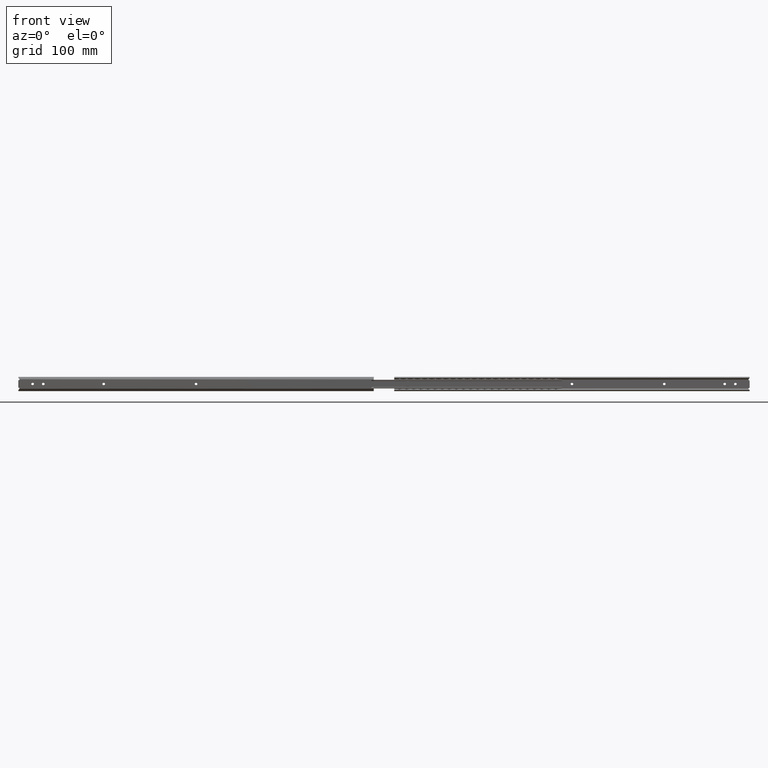
[diagram: clean part render]
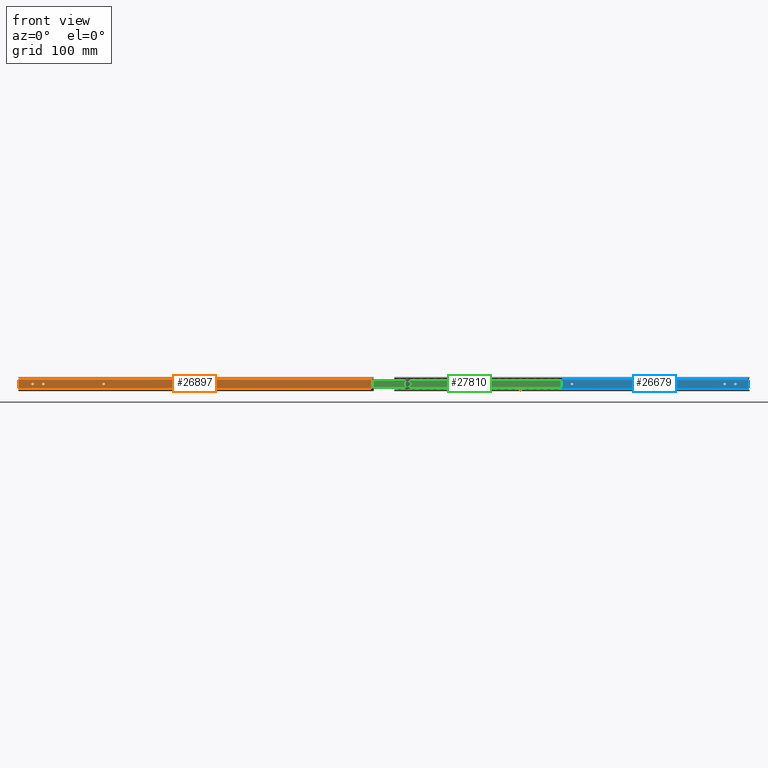
[diagram: same view with three faces highlighted in distinct colors, each labeled with its STEP entity id]
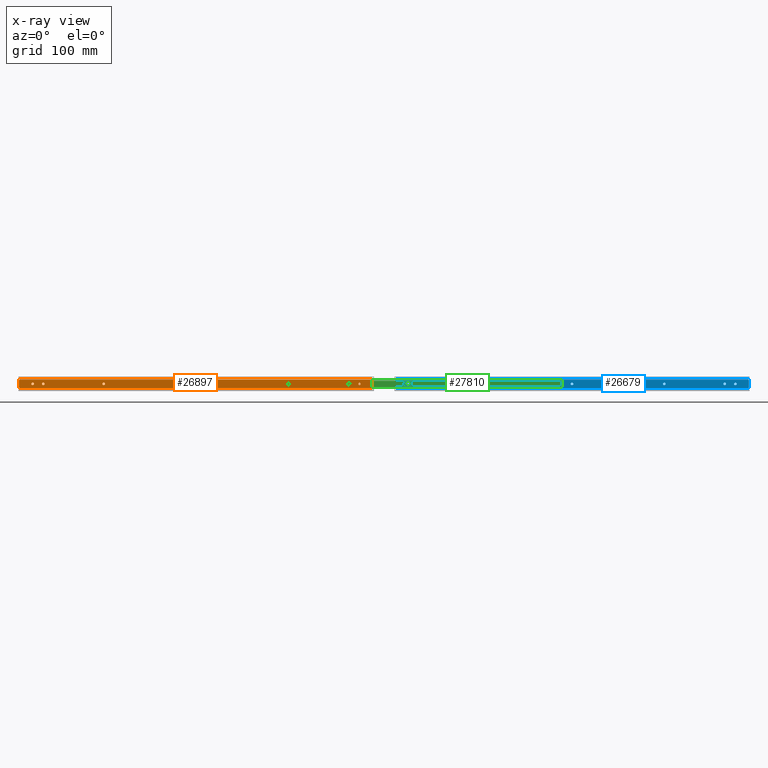
[diagram: x-ray of the same camera — body ghosted, the three highlighted faces saturated]
A machine part, front view with three faces highlighted in distinct colors.
The next image is the same camera in x-ray (body ghosted, the three faces saturated) — at least one of them is partly hidden behind the body in this view.
Their STEP definitions:

[orange] entity #26897 — the highlighted face is a freeform B-spline surface patch.
#23578=CARTESIAN_POINT('',(21.597015676147201,5.204170E-017,-0.097677684964874));
#23579=VERTEX_POINT('',#23578);
#23585=CARTESIAN_POINT('',(20.0,0.0,-1.600000000000000));
#23586=VERTEX_POINT('',#23585);
#23587=CARTESIAN_POINT('',(20.0,0.0,-1.600000000000000));
#23588=CARTESIAN_POINT('',(21.505129666052557,0.0,-1.600000000000001));
#23589=CARTESIAN_POINT('',(21.597015676147201,5.204170E-017,-0.097677684964874));
#23597=(BOUNDED_CURVE()B_SPLINE_CURVE(2,(#23587,#23588,#23589),.UNSPECIFIED.,.F.,.U.)B_SPLINE_CURVE_WITH_KNOTS((3,3),(0.500000000000000,0.739332957550924),.UNSPECIFIED.)CURVE()GEOMETRIC_REPRESENTATION_ITEM()RATIONAL_B_SPLINE_CURVE((1.0,0.719603998779066,0.976072031619401))REPRESENTATION_ITEM(''));
#23598=EDGE_CURVE('',#23586,#23579,#23597,.T.);
#23600=CARTESIAN_POINT('',(18.411184761992889,4.968999E-017,0.188854810572561));
#23601=VERTEX_POINT('',#23600);
#23602=CARTESIAN_POINT('',(18.411184761992882,4.968999E-017,0.188854810572561));
#23603=CARTESIAN_POINT('',(18.399999999999999,0.0,0.094758626936107));
#23604=CARTESIAN_POINT('',(18.399999999999999,0.0,0.0));
#23605=CARTESIAN_POINT('',(18.399999999999991,0.0,-1.600000000000000));
#23606=CARTESIAN_POINT('',(20.0,0.0,-1.600000000000000));
#23614=(BOUNDED_CURVE()B_SPLINE_CURVE(2,(#23602,#23603,#23604,#23605,#23606),.UNSPECIFIED.,.F.,.U.)B_SPLINE_CURVE_WITH_KNOTS((3,2,3),(0.229562466043801,0.250000000000000,0.500000000000000),.UNSPECIFIED.)CURVE()GEOMETRIC_REPRESENTATION_ITEM()RATIONAL_B_SPLINE_CURVE((0.956026739542767,0.976055939579838,1.0,0.707106781186548,1.0))REPRESENTATION_ITEM(''));
#23615=EDGE_CURVE('',#23601,#23586,#23614,.T.);
#23659=CARTESIAN_POINT('',(20.0,0.0,1.600000000000000));
#23660=VERTEX_POINT('',#23659);
#23661=CARTESIAN_POINT('',(20.0,0.0,1.600000000000000));
#23662=CARTESIAN_POINT('',(18.578920821747779,0.0,1.600000000000000));
#23663=CARTESIAN_POINT('',(18.411184761992882,4.968999E-017,0.188854810572561));
#23671=(BOUNDED_CURVE()B_SPLINE_CURVE(2,(#23661,#23662,#23663),.UNSPECIFIED.,.F.,.U.)B_SPLINE_CURVE_WITH_KNOTS((3,3),(0.0,0.229562466043801),.UNSPECIFIED.)CURVE()GEOMETRIC_REPRESENTATION_ITEM()RATIONAL_B_SPLINE_CURVE((1.0,0.731050841606709,0.956026739542767))REPRESENTATION_ITEM(''));
#23672=EDGE_CURVE('',#23660,#23601,#23671,.T.);
#23674=CARTESIAN_POINT('',(21.597015676147205,5.204170E-017,-0.097677684964874));
#23675=CARTESIAN_POINT('',(21.599999999999998,0.0,-0.048884443047715));
#23676=CARTESIAN_POINT('',(21.600000000000001,0.0,0.0));
#23677=CARTESIAN_POINT('',(21.600000000000005,0.0,1.600000000000000));
#23678=CARTESIAN_POINT('',(20.0,0.0,1.600000000000000));
#23686=(BOUNDED_CURVE()B_SPLINE_CURVE(2,(#23674,#23675,#23676,#23677,#23678),.UNSPECIFIED.,.F.,.U.)B_SPLINE_CURVE_WITH_KNOTS((3,2,3),(0.739332957550924,0.750000000000000,1.0),.UNSPECIFIED.)CURVE()GEOMETRIC_REPRESENTATION_ITEM()RATIONAL_B_SPLINE_CURVE((0.976072031619400,0.987502782407481,1.0,0.707106781186548,1.0))REPRESENTATION_ITEM(''));
#23687=EDGE_CURVE('',#23579,#23660,#23686,.T.);
#23722=CARTESIAN_POINT('',(35.299999999999997,8.526513E-014,-1.600000000000080));
#23723=VERTEX_POINT('',#23722);
#23729=CARTESIAN_POINT('',(34.700000000000003,0.0,-1.600000000000000));
#23730=VERTEX_POINT('',#23729);
#23731=CARTESIAN_POINT('',(34.700000000000003,0.0,-1.600000000000000));
#23732=CARTESIAN_POINT('',(35.299999999999997,8.526513E-014,-1.600000000000080));
#23733=QUASI_UNIFORM_CURVE('',1,(#23731,#23732),.UNSPECIFIED.,.F.,.U.);
#23734=EDGE_CURVE('',#23730,#23723,#23733,.T.);
#23780=CARTESIAN_POINT('',(34.700000000000003,0.0,1.600000000000025));
#23781=VERTEX_POINT('',#23780);
#23782=CARTESIAN_POINT('',(34.700000000000003,0.0,1.600000000000000));
#23783=CARTESIAN_POINT('',(33.100000000000009,0.0,1.600000000000000));
#23784=CARTESIAN_POINT('',(33.100000000000001,0.0,0.0));
#23785=CARTESIAN_POINT('',(33.100000000000009,0.0,-1.600000000000000));
#23786=CARTESIAN_POINT('',(34.700000000000003,0.0,-1.600000000000000));
#23794=(BOUNDED_CURVE()B_SPLINE_CURVE(2,(#23782,#23783,#23784,#23785,#23786),.UNSPECIFIED.,.F.,.U.)B_SPLINE_CURVE_WITH_KNOTS((3,2,3),(0.0,0.500000000000000,1.0),.UNSPECIFIED.)CURVE()GEOMETRIC_REPRESENTATION_ITEM()RATIONAL_B_SPLINE_CURVE((1.0,0.707106781186548,1.0,0.707106781186548,1.0))REPRESENTATION_ITEM(''));
#23795=EDGE_CURVE('',#23781,#23730,#23794,.T.);
#23818=CARTESIAN_POINT('',(35.299999999999997,0.0,1.600000000000025));
#23819=VERTEX_POINT('',#23818);
#23820=CARTESIAN_POINT('',(35.299999999999997,0.0,1.600000000000025));
#23821=CARTESIAN_POINT('',(34.700000000000003,0.0,1.600000000000025));
#23822=QUASI_UNIFORM_CURVE('',1,(#23820,#23821),.UNSPECIFIED.,.F.,.U.);
#23823=EDGE_CURVE('',#23819,#23781,#23822,.T.);
#23867=CARTESIAN_POINT('',(35.299999999999997,8.526513E-014,-1.600000000000080));
#23868=CARTESIAN_POINT('',(36.900000000000006,0.0,-1.600000000000000));
#23869=CARTESIAN_POINT('',(36.899999999999999,0.0,0.0));
#23870=CARTESIAN_POINT('',(36.900000000000006,0.0,1.600000000000000));
#23871=CARTESIAN_POINT('',(35.299999999999997,0.0,1.600000000000000));
#23879=(BOUNDED_CURVE()B_SPLINE_CURVE(2,(#23867,#23868,#23869,#23870,#23871),.UNSPECIFIED.,.F.,.U.)B_SPLINE_CURVE_WITH_KNOTS((3,2,3),(0.0,0.500000000000000,1.0),.UNSPECIFIED.)CURVE()GEOMETRIC_REPRESENTATION_ITEM()RATIONAL_B_SPLINE_CURVE((1.0,0.707106781186548,1.0,0.707106781186548,1.0))REPRESENTATION_ITEM(''));
#23880=EDGE_CURVE('',#23723,#23819,#23879,.T.);
#23923=CARTESIAN_POINT('',(120.300000000000000,1.110223E-013,1.600000000000000));
#23924=VERTEX_POINT('',#23923);
#23930=CARTESIAN_POINT('',(120.300000000000000,0.0,-1.600000000000080));
#23931=VERTEX_POINT('',#23930);
#23932=CARTESIAN_POINT('',(120.300000000000000,0.0,-1.600000000000000));
#23933=CARTESIAN_POINT('',(121.900000000000010,0.0,-1.600000000000000));
#23934=CARTESIAN_POINT('',(121.900000000000010,0.0,0.0));
#23935=CARTESIAN_POINT('',(121.900000000000010,0.0,1.600000000000000));
#23936=CARTESIAN_POINT('',(120.300000000000000,0.0,1.600000000000000));
#23944=(BOUNDED_CURVE()B_SPLINE_CURVE(2,(#23932,#23933,#23934,#23935,#23936),.UNSPECIFIED.,.F.,.U.)B_SPLINE_CURVE_WITH_KNOTS((3,2,3),(0.0,0.500000000000000,1.0),.UNSPECIFIED.)CURVE()GEOMETRIC_REPRESENTATION_ITEM()RATIONAL_B_SPLINE_CURVE((1.0,0.707106781186548,1.0,0.707106781186548,1.0))REPRESENTATION_ITEM(''));
#23945=EDGE_CURVE('',#23931,#23924,#23944,.T.);
#23968=CARTESIAN_POINT('',(119.700000000000000,0.0,-1.600000000000000));
#23969=VERTEX_POINT('',#23968);
#23970=CARTESIAN_POINT('',(119.700000000000000,0.0,-1.600000000000000));
#23971=CARTESIAN_POINT('',(120.300000000000000,0.0,-1.600000000000080));
#23972=QUASI_UNIFORM_CURVE('',1,(#23970,#23971),.UNSPECIFIED.,.F.,.U.);
#23973=EDGE_CURVE('',#23969,#23931,#23972,.T.);
#24019=CARTESIAN_POINT('',(119.700000000000000,0.0,1.600000000000000));
#24020=VERTEX_POINT('',#24019);
#24021=CARTESIAN_POINT('',(119.700000000000000,0.0,1.600000000000000));
#24022=CARTESIAN_POINT('',(118.099999999999980,0.0,1.600000000000000));
#24023=CARTESIAN_POINT('',(118.099999999999990,0.0,0.0));
#24024=CARTESIAN_POINT('',(118.099999999999980,0.0,-1.600000000000000));
#24025=CARTESIAN_POINT('',(119.700000000000000,0.0,-1.600000000000000));
#24033=(BOUNDED_CURVE()B_SPLINE_CURVE(2,(#24021,#24022,#24023,#24024,#24025),.UNSPECIFIED.,.F.,.U.)B_SPLINE_CURVE_WITH_KNOTS((3,2,3),(0.0,0.500000000000000,1.0),.UNSPECIFIED.)CURVE()GEOMETRIC_REPRESENTATION_ITEM()RATIONAL_B_SPLINE_CURVE((1.0,0.707106781186548,1.0,0.707106781186548,1.0))REPRESENTATION_ITEM(''));
#24034=EDGE_CURVE('',#24020,#23969,#24033,.T.);
#24055=CARTESIAN_POINT('',(120.300000000000000,1.110223E-013,1.600000000000000));
#24056=CARTESIAN_POINT('',(119.700000000000000,0.0,1.600000000000000));
#24057=QUASI_UNIFORM_CURVE('',1,(#24055,#24056),.UNSPECIFIED.,.F.,.U.);
#24058=EDGE_CURVE('',#23924,#24020,#24057,.T.);
#24078=CARTESIAN_POINT('',(250.300000000000010,8.526513E-014,-1.600000000000000));
#24079=VERTEX_POINT('',#24078);
#24085=CARTESIAN_POINT('',(249.699999999999990,0.0,-1.600000000000000));
#24086=VERTEX_POINT('',#24085);
#24087=CARTESIAN_POINT('',(249.699999999999990,0.0,-1.600000000000000));
#24088=CARTESIAN_POINT('',(250.300000000000010,8.526513E-014,-1.600000000000000));
#24089=QUASI_UNIFORM_CURVE('',1,(#24087,#24088),.UNSPECIFIED.,.F.,.U.);
#24090=EDGE_CURVE('',#24086,#24079,#24089,.T.);
#24136=CARTESIAN_POINT('',(249.699999999999990,0.0,1.599999999999910));
#24137=VERTEX_POINT('',#24136);
#24138=CARTESIAN_POINT('',(249.699999999999990,0.0,1.600000000000000));
#24139=CARTESIAN_POINT('',(248.100000000000080,0.0,1.600000000000000));
#24140=CARTESIAN_POINT('',(248.099999999999990,0.0,0.0));
#24141=CARTESIAN_POINT('',(248.100000000000080,0.0,-1.600000000000000));
#24142=CARTESIAN_POINT('',(249.699999999999990,0.0,-1.600000000000000));
#24150=(BOUNDED_CURVE()B_SPLINE_CURVE(2,(#24138,#24139,#24140,#24141,#24142),.UNSPECIFIED.,.F.,.U.)B_SPLINE_CURVE_WITH_KNOTS((3,2,3),(0.0,0.500000000000000,1.0),.UNSPECIFIED.)CURVE()GEOMETRIC_REPRESENTATION_ITEM()RATIONAL_B_SPLINE_CURVE((1.0,0.707106781186548,1.0,0.707106781186548,1.0))REPRESENTATION_ITEM(''));
#24151=EDGE_CURVE('',#24137,#24086,#24150,.T.);
#24174=CARTESIAN_POINT('',(250.300000000000010,0.0,1.599999999999910));
#24175=VERTEX_POINT('',#24174);
#24176=CARTESIAN_POINT('',(250.300000000000010,0.0,1.599999999999910));
#24177=CARTESIAN_POINT('',(249.699999999999990,0.0,1.599999999999910));
#24178=QUASI_UNIFORM_CURVE('',1,(#24176,#24177),.UNSPECIFIED.,.F.,.U.);
#24179=EDGE_CURVE('',#24175,#24137,#24178,.T.);
#24223=CARTESIAN_POINT('',(250.300000000000010,0.0,-1.600000000000000));
#24224=CARTESIAN_POINT('',(251.900000000000090,0.0,-1.600000000000000));
#24225=CARTESIAN_POINT('',(251.900000000000010,0.0,0.0));
#24226=CARTESIAN_POINT('',(251.900000000000090,0.0,1.600000000000000));
#24227=CARTESIAN_POINT('',(250.300000000000010,0.0,1.600000000000000));
#24235=(BOUNDED_CURVE()B_SPLINE_CURVE(2,(#24223,#24224,#24225,#24226,#24227),.UNSPECIFIED.,.F.,.U.)B_SPLINE_CURVE_WITH_KNOTS((3,2,3),(0.0,0.500000000000000,1.0),.UNSPECIFIED.)CURVE()GEOMETRIC_REPRESENTATION_ITEM()RATIONAL_B_SPLINE_CURVE((1.0,0.707106781186548,1.0,0.707106781186548,1.0))REPRESENTATION_ITEM(''));
#24236=EDGE_CURVE('',#24079,#24175,#24235,.T.);
#24256=CARTESIAN_POINT('',(380.300000000000010,8.526513E-014,-1.600000000000000));
#24257=VERTEX_POINT('',#24256);
#24263=CARTESIAN_POINT('',(379.699999999999990,0.0,-1.600000000000025));
#24264=VERTEX_POINT('',#24263);
#24265=CARTESIAN_POINT('',(379.699999999999990,0.0,-1.600000000000025));
#24266=CARTESIAN_POINT('',(380.300000000000010,8.526513E-014,-1.600000000000000));
#24267=QUASI_UNIFORM_CURVE('',1,(#24265,#24266),.UNSPECIFIED.,.F.,.U.);
#24268=EDGE_CURVE('',#24264,#24257,#24267,.T.);
#24314=CARTESIAN_POINT('',(379.699999999999990,0.0,1.599999999999910));
#24315=VERTEX_POINT('',#24314);
#24316=CARTESIAN_POINT('',(379.699999999999990,0.0,1.600000000000025));
#24317=CARTESIAN_POINT('',(378.100000000000020,0.0,1.600000000000026));
#24318=CARTESIAN_POINT('',(378.099999999999910,0.0,0.0));
#24319=CARTESIAN_POINT('',(378.100000000000020,0.0,-1.600000000000026));
#24320=CARTESIAN_POINT('',(379.699999999999990,0.0,-1.600000000000025));
#24328=(BOUNDED_CURVE()B_SPLINE_CURVE(2,(#24316,#24317,#24318,#24319,#24320),.UNSPECIFIED.,.F.,.U.)B_SPLINE_CURVE_WITH_KNOTS((3,2,3),(0.0,0.500000000000000,1.0),.UNSPECIFIED.)CURVE()GEOMETRIC_REPRESENTATION_ITEM()RATIONAL_B_SPLINE_CURVE((1.0,0.707106781186547,1.0,0.707106781186547,1.0))REPRESENTATION_ITEM(''));
#24329=EDGE_CURVE('',#24315,#24264,#24328,.T.);
#24352=CARTESIAN_POINT('',(380.300000000000010,0.0,1.599999999999910));
#24353=VERTEX_POINT('',#24352);
#24354=CARTESIAN_POINT('',(380.300000000000010,0.0,1.599999999999910));
#24355=CARTESIAN_POINT('',(379.699999999999990,0.0,1.599999999999910));
#24356=QUASI_UNIFORM_CURVE('',1,(#24354,#24355),.UNSPECIFIED.,.F.,.U.);
#24357=EDGE_CURVE('',#24353,#24315,#24356,.T.);
#24401=CARTESIAN_POINT('',(380.300000000000010,0.0,-1.600000000000025));
#24402=CARTESIAN_POINT('',(381.900000000000150,0.0,-1.600000000000026));
#24403=CARTESIAN_POINT('',(381.900000000000090,0.0,0.0));
#24404=CARTESIAN_POINT('',(381.900000000000150,0.0,1.600000000000026));
#24405=CARTESIAN_POINT('',(380.300000000000010,0.0,1.600000000000025));
#24413=(BOUNDED_CURVE()B_SPLINE_CURVE(2,(#24401,#24402,#24403,#24404,#24405),.UNSPECIFIED.,.F.,.U.)B_SPLINE_CURVE_WITH_KNOTS((3,2,3),(0.0,0.500000000000000,1.0),.UNSPECIFIED.)CURVE()GEOMETRIC_REPRESENTATION_ITEM()RATIONAL_B_SPLINE_CURVE((1.0,0.707106781186547,1.0,0.707106781186547,1.0))REPRESENTATION_ITEM(''));
#24414=EDGE_CURVE('',#24257,#24353,#24413,.T.);
#24434=CARTESIAN_POINT('',(465.300000000000010,8.526513E-014,-1.600000000000000));
#24435=VERTEX_POINT('',#24434);
#24441=CARTESIAN_POINT('',(464.699999999999990,0.0,-1.600000000000025));
#24442=VERTEX_POINT('',#24441);
#24443=CARTESIAN_POINT('',(464.699999999999990,0.0,-1.600000000000025));
#24444=CARTESIAN_POINT('',(465.300000000000010,8.526513E-014,-1.600000000000000));
#24445=QUASI_UNIFORM_CURVE('',1,(#24443,#24444),.UNSPECIFIED.,.F.,.U.);
#24446=EDGE_CURVE('',#24442,#24435,#24445,.T.);
#24492=CARTESIAN_POINT('',(464.699999999999990,0.0,1.599999999999910));
#24493=VERTEX_POINT('',#24492);
#24494=CARTESIAN_POINT('',(464.699999999999990,0.0,1.600000000000025));
#24495=CARTESIAN_POINT('',(463.099999999999970,0.0,1.600000000000026));
#24496=CARTESIAN_POINT('',(463.100000000000020,0.0,0.0));
#24497=CARTESIAN_POINT('',(463.099999999999970,0.0,-1.600000000000026));
#24498=CARTESIAN_POINT('',(464.699999999999990,0.0,-1.600000000000025));
#24506=(BOUNDED_CURVE()B_SPLINE_CURVE(2,(#24494,#24495,#24496,#24497,#24498),.UNSPECIFIED.,.F.,.U.)B_SPLINE_CURVE_WITH_KNOTS((3,2,3),(0.0,0.500000000000000,1.0),.UNSPECIFIED.)CURVE()GEOMETRIC_REPRESENTATION_ITEM()RATIONAL_B_SPLINE_CURVE((1.0,0.707106781186547,1.0,0.707106781186547,1.0))REPRESENTATION_ITEM(''));
#24507=EDGE_CURVE('',#24493,#24442,#24506,.T.);
#24530=CARTESIAN_POINT('',(465.300000000000010,0.0,1.599999999999910));
#24531=VERTEX_POINT('',#24530);
#24532=CARTESIAN_POINT('',(465.300000000000010,0.0,1.599999999999910));
#24533=CARTESIAN_POINT('',(464.699999999999990,0.0,1.599999999999910));
#24534=QUASI_UNIFORM_CURVE('',1,(#24532,#24533),.UNSPECIFIED.,.F.,.U.);
#24535=EDGE_CURVE('',#24531,#24493,#24534,.T.);
#24579=CARTESIAN_POINT('',(465.300000000000010,0.0,-1.600000000000025));
#24580=CARTESIAN_POINT('',(466.899999999999980,0.0,-1.600000000000026));
#24581=CARTESIAN_POINT('',(466.899999999999980,0.0,0.0));
#24582=CARTESIAN_POINT('',(466.899999999999980,0.0,1.600000000000026));
#24583=CARTESIAN_POINT('',(465.300000000000010,0.0,1.600000000000025));
#24591=(BOUNDED_CURVE()B_SPLINE_CURVE(2,(#24579,#24580,#24581,#24582,#24583),.UNSPECIFIED.,.F.,.U.)B_SPLINE_CURVE_WITH_KNOTS((3,2,3),(0.0,0.500000000000000,1.0),.UNSPECIFIED.)CURVE()GEOMETRIC_REPRESENTATION_ITEM()RATIONAL_B_SPLINE_CURVE((1.0,0.707106781186547,1.0,0.707106781186547,1.0))REPRESENTATION_ITEM(''));
#24592=EDGE_CURVE('',#24435,#24531,#24591,.T.);
#24612=CARTESIAN_POINT('',(480.300000000000010,8.526513E-014,-1.600000000000000));
#24613=VERTEX_POINT('',#24612);
#24619=CARTESIAN_POINT('',(479.699999999999990,0.0,-1.600000000000025));
#24620=VERTEX_POINT('',#24619);
#24621=CARTESIAN_POINT('',(479.699999999999990,0.0,-1.600000000000025));
#24622=CARTESIAN_POINT('',(480.300000000000010,8.526513E-014,-1.600000000000000));
#24623=QUASI_UNIFORM_CURVE('',1,(#24621,#24622),.UNSPECIFIED.,.F.,.U.);
#24624=EDGE_CURVE('',#24620,#24613,#24623,.T.);
#24670=CARTESIAN_POINT('',(479.699999999999990,0.0,1.599999999999910));
#24671=VERTEX_POINT('',#24670);
#24672=CARTESIAN_POINT('',(479.699999999999990,0.0,1.600000000000025));
#24673=CARTESIAN_POINT('',(478.099999999999970,0.0,1.600000000000026));
#24674=CARTESIAN_POINT('',(478.100000000000020,0.0,0.0));
#24675=CARTESIAN_POINT('',(478.099999999999970,0.0,-1.600000000000026));
#24676=CARTESIAN_POINT('',(479.699999999999990,0.0,-1.600000000000025));
#24684=(BOUNDED_CURVE()B_SPLINE_CURVE(2,(#24672,#24673,#24674,#24675,#24676),.UNSPECIFIED.,.F.,.U.)B_SPLINE_CURVE_WITH_KNOTS((3,2,3),(0.0,0.500000000000000,1.0),.UNSPECIFIED.)CURVE()GEOMETRIC_REPRESENTATION_ITEM()RATIONAL_B_SPLINE_CURVE((1.0,0.707106781186547,1.0,0.707106781186547,1.0))REPRESENTATION_ITEM(''));
#24685=EDGE_CURVE('',#24671,#24620,#24684,.T.);
#24708=CARTESIAN_POINT('',(480.300000000000010,0.0,1.599999999999910));
#24709=VERTEX_POINT('',#24708);
#24710=CARTESIAN_POINT('',(480.300000000000010,0.0,1.599999999999910));
#24711=CARTESIAN_POINT('',(479.699999999999990,0.0,1.599999999999910));
#24712=QUASI_UNIFORM_CURVE('',1,(#24710,#24711),.UNSPECIFIED.,.F.,.U.);
#24713=EDGE_CURVE('',#24709,#24671,#24712,.T.);
#24757=CARTESIAN_POINT('',(480.300000000000010,0.0,-1.600000000000025));
#24758=CARTESIAN_POINT('',(481.899999999999920,0.0,-1.600000000000026));
#24759=CARTESIAN_POINT('',(481.899999999999980,0.0,0.0));
#24760=CARTESIAN_POINT('',(481.899999999999920,0.0,1.600000000000026));
#24761=CARTESIAN_POINT('',(480.300000000000010,0.0,1.600000000000025));
#24769=(BOUNDED_CURVE()B_SPLINE_CURVE(2,(#24757,#24758,#24759,#24760,#24761),.UNSPECIFIED.,.F.,.U.)B_SPLINE_CURVE_WITH_KNOTS((3,2,3),(0.0,0.500000000000000,1.0),.UNSPECIFIED.)CURVE()GEOMETRIC_REPRESENTATION_ITEM()RATIONAL_B_SPLINE_CURVE((1.0,0.707106781186547,1.0,0.707106781186547,1.0))REPRESENTATION_ITEM(''));
#24770=EDGE_CURVE('',#24613,#24709,#24769,.T.);
#24829=CARTESIAN_POINT('',(499.0,0.0,-5.383484861008860));
#24830=VERTEX_POINT('',#24829);
#24842=CARTESIAN_POINT('',(499.0,0.0,5.383484861008770));
#24843=VERTEX_POINT('',#24842);
#24844=CARTESIAN_POINT('',(499.0,0.0,5.383484861008770));
#24845=CARTESIAN_POINT('',(499.0,0.0,-5.383484861008860));
#24846=QUASI_UNIFORM_CURVE('',1,(#24844,#24845),.UNSPECIFIED.,.F.,.U.);
#24847=EDGE_CURVE('',#24843,#24830,#24846,.T.);
#25253=CARTESIAN_POINT('',(498.424053688013880,0.0,6.081989000000000));
#25254=VERTEX_POINT('',#25253);
#25255=CARTESIAN_POINT('',(498.424053688014110,0.0,6.081989000000020));
#25256=CARTESIAN_POINT('',(498.534727763389640,0.0,5.586546312725789));
#25257=CARTESIAN_POINT('',(499.0,0.0,5.383484861008826));
#25265=(BOUNDED_CURVE()B_SPLINE_CURVE(2,(#25255,#25256,#25257),.UNSPECIFIED.,.F.,.U.)CURVE()GEOMETRIC_REPRESENTATION_ITEM()QUASI_UNIFORM_CURVE()RATIONAL_B_SPLINE_CURVE((1.0,0.891680690258839,1.0))REPRESENTATION_ITEM(''));
#25266=EDGE_CURVE('',#25254,#24843,#25265,.T.);
#25467=CARTESIAN_POINT('',(498.424053688013880,0.0,-6.081989000000000));
#25468=VERTEX_POINT('',#25467);
#25469=CARTESIAN_POINT('',(499.000000000000110,0.0,-5.383484861008925));
#25470=CARTESIAN_POINT('',(498.534727763389750,0.0,-5.586546312725862));
#25471=CARTESIAN_POINT('',(498.424053688014110,0.0,-6.081989000000025));
#25479=(BOUNDED_CURVE()B_SPLINE_CURVE(2,(#25469,#25470,#25471),.UNSPECIFIED.,.F.,.U.)CURVE()GEOMETRIC_REPRESENTATION_ITEM()QUASI_UNIFORM_CURVE()RATIONAL_B_SPLINE_CURVE((1.0,0.891680690258861,1.0))REPRESENTATION_ITEM(''));
#25480=EDGE_CURVE('',#24830,#25468,#25479,.T.);
#26804=CARTESIAN_POINT('',(3.100000000000000,7.958044E-014,-6.081989000000000));
#26805=VERTEX_POINT('',#26804);
#26806=CARTESIAN_POINT('',(498.424053688013880,0.0,-6.081989000000000));
#26807=CARTESIAN_POINT('',(3.100000000000000,7.958044E-014,-6.081989000000000));
#26808=QUASI_UNIFORM_CURVE('',1,(#26806,#26807),.UNSPECIFIED.,.F.,.U.);
#26809=EDGE_CURVE('',#25468,#26805,#26808,.T.);
#26832=CARTESIAN_POINT('',(-21.670204038849619,8.526513E-014,-6.689579519878855));
#26833=CARTESIAN_POINT('',(-21.670204038849619,8.526513E-014,6.689579084861102));
#26834=CARTESIAN_POINT('',(523.770217339924100,8.526513E-014,-6.689579519878855));
#26835=CARTESIAN_POINT('',(523.770217339924100,8.526513E-014,6.689579084861102));
#26836=B_SPLINE_SURFACE_WITH_KNOTS('',1,1,((#26832,#26834),(#26833,#26835)),.UNSPECIFIED.,.F.,.F.,.U.,(2,2),(2,2),(0.0,13.379158604739960),(0.0,545.440421378773750),.UNSPECIFIED.);
#26837=ORIENTED_EDGE('',*,*,#25266,.T.);
#26838=ORIENTED_EDGE('',*,*,#24847,.T.);
#26839=ORIENTED_EDGE('',*,*,#25480,.T.);
#26840=ORIENTED_EDGE('',*,*,#26809,.T.);
#26841=CARTESIAN_POINT('',(3.100000000000000,-9.063930E-014,6.081989000000000));
#26842=VERTEX_POINT('',#26841);
#26843=CARTESIAN_POINT('',(3.100000000000000,-9.063930E-014,6.081989000000000));
#26844=CARTESIAN_POINT('',(3.100000000000000,7.958044E-014,-6.081989000000000));
#26845=QUASI_UNIFORM_CURVE('',1,(#26843,#26844),.UNSPECIFIED.,.F.,.U.);
#26846=EDGE_CURVE('',#26842,#26805,#26845,.T.);
#26847=ORIENTED_EDGE('',*,*,#26846,.F.);
#26848=CARTESIAN_POINT('',(498.424053688013880,0.0,6.081989000000000));
#26849=CARTESIAN_POINT('',(3.100000000000000,-9.063930E-014,6.081989000000000));
#26850=QUASI_UNIFORM_CURVE('',1,(#26848,#26849),.UNSPECIFIED.,.F.,.U.);
#26851=EDGE_CURVE('',#25254,#26842,#26850,.T.);
#26852=ORIENTED_EDGE('',*,*,#26851,.F.);
#26853=EDGE_LOOP('',(#26837,#26838,#26839,#26840,#26847,#26852));
#26854=FACE_OUTER_BOUND('',#26853,.T.);
#26855=ORIENTED_EDGE('',*,*,#23880,.T.);
#26856=ORIENTED_EDGE('',*,*,#23823,.T.);
#26857=ORIENTED_EDGE('',*,*,#23795,.T.);
#26858=ORIENTED_EDGE('',*,*,#23734,.T.);
#26859=EDGE_LOOP('',(#26855,#26856,#26857,#26858));
#26860=FACE_BOUND('',#26859,.T.);
#26861=ORIENTED_EDGE('',*,*,#24058,.T.);
#26862=ORIENTED_EDGE('',*,*,#24034,.T.);
#26863=ORIENTED_EDGE('',*,*,#23973,.T.);
#26864=ORIENTED_EDGE('',*,*,#23945,.T.);
#26865=EDGE_LOOP('',(#26861,#26862,#26863,#26864));
#26866=FACE_BOUND('',#26865,.T.);
#26867=ORIENTED_EDGE('',*,*,#24236,.T.);
#26868=ORIENTED_EDGE('',*,*,#24179,.T.);
#26869=ORIENTED_EDGE('',*,*,#24151,.T.);
#26870=ORIENTED_EDGE('',*,*,#24090,.T.);
#26871=EDGE_LOOP('',(#26867,#26868,#26869,#26870));
#26872=FACE_BOUND('',#26871,.T.);
#26873=ORIENTED_EDGE('',*,*,#24414,.T.);
#26874=ORIENTED_EDGE('',*,*,#24357,.T.);
#26875=ORIENTED_EDGE('',*,*,#24329,.T.);
#26876=ORIENTED_EDGE('',*,*,#24268,.T.);
#26877=EDGE_LOOP('',(#26873,#26874,#26875,#26876));
#26878=FACE_BOUND('',#26877,.T.);
#26879=ORIENTED_EDGE('',*,*,#24592,.T.);
#26880=ORIENTED_EDGE('',*,*,#24535,.T.);
#26881=ORIENTED_EDGE('',*,*,#24507,.T.);
#26882=ORIENTED_EDGE('',*,*,#24446,.T.);
#26883=EDGE_LOOP('',(#26879,#26880,#26881,#26882));
#26884=FACE_BOUND('',#26883,.T.);
#26885=ORIENTED_EDGE('',*,*,#24770,.T.);
#26886=ORIENTED_EDGE('',*,*,#24713,.T.);
#26887=ORIENTED_EDGE('',*,*,#24685,.T.);
#26888=ORIENTED_EDGE('',*,*,#24624,.T.);
#26889=EDGE_LOOP('',(#26885,#26886,#26887,#26888));
#26890=FACE_BOUND('',#26889,.T.);
#26891=ORIENTED_EDGE('',*,*,#23598,.T.);
#26892=ORIENTED_EDGE('',*,*,#23687,.T.);
#26893=ORIENTED_EDGE('',*,*,#23672,.T.);
#26894=ORIENTED_EDGE('',*,*,#23615,.T.);
#26895=EDGE_LOOP('',(#26891,#26892,#26893,#26894));
#26896=FACE_BOUND('',#26895,.T.);
#26897=ADVANCED_FACE('',(#26854,#26860,#26866,#26872,#26878,#26884,#26890,#26896),#26836,.T.);

[blue] entity #26679 — the highlighted face is a freeform B-spline surface patch.
#23544=CARTESIAN_POINT('',(18.411184761992871,-1.399999999999956,0.188854810572428));
#23545=VERTEX_POINT('',#23544);
#23546=CARTESIAN_POINT('',(20.0,-1.399999999999956,-1.600000000000000));
#23547=VERTEX_POINT('',#23546);
#23548=CARTESIAN_POINT('',(18.411184761992871,-1.399999999999956,0.188854810572428));
#23549=CARTESIAN_POINT('',(18.399999999999999,-1.399999999999956,0.094758626935972));
#23550=CARTESIAN_POINT('',(18.399999999999999,-1.399999999999956,0.0));
#23551=CARTESIAN_POINT('',(18.399999999999991,-1.399999999999956,-1.600000000000000));
#23552=CARTESIAN_POINT('',(20.0,-1.399999999999956,-1.600000000000000));
#23560=(BOUNDED_CURVE()B_SPLINE_CURVE(2,(#23548,#23549,#23550,#23551,#23552),.UNSPECIFIED.,.F.,.U.)B_SPLINE_CURVE_WITH_KNOTS((3,2,3),(0.729562466043829,0.750000000000000,1.0),.UNSPECIFIED.)CURVE()GEOMETRIC_REPRESENTATION_ITEM()RATIONAL_B_SPLINE_CURVE((0.956026739542822,0.976055939579871,1.0,0.707106781186548,1.0))REPRESENTATION_ITEM(''));
#23561=EDGE_CURVE('',#23545,#23547,#23560,.T.);
#23563=CARTESIAN_POINT('',(21.597015676147208,-1.399999999999956,-0.097677684964806));
#23564=VERTEX_POINT('',#23563);
#23565=CARTESIAN_POINT('',(20.0,-1.399999999999956,-1.600000000000000));
#23566=CARTESIAN_POINT('',(21.505129666052685,-1.399999999999956,-1.599999999999999));
#23567=CARTESIAN_POINT('',(21.597015676147208,-1.399999999999956,-0.097677684964806));
#23575=(BOUNDED_CURVE()B_SPLINE_CURVE(2,(#23565,#23566,#23567),.UNSPECIFIED.,.F.,.U.)B_SPLINE_CURVE_WITH_KNOTS((3,3),(0.0,0.239332957550938),.UNSPECIFIED.)CURVE()GEOMETRIC_REPRESENTATION_ITEM()RATIONAL_B_SPLINE_CURVE((1.0,0.719603998779049,0.976072031619432))REPRESENTATION_ITEM(''));
#23576=EDGE_CURVE('',#23547,#23564,#23575,.T.);
#23643=CARTESIAN_POINT('',(20.0,-1.399999999999956,1.600000000000000));
#23644=VERTEX_POINT('',#23643);
#23645=CARTESIAN_POINT('',(20.0,-1.399999999999956,1.600000000000000));
#23646=CARTESIAN_POINT('',(18.578920821747538,-1.399999999999955,1.600000000000000));
#23647=CARTESIAN_POINT('',(18.411184761992871,-1.399999999999956,0.188854810572428));
#23655=(BOUNDED_CURVE()B_SPLINE_CURVE(2,(#23645,#23646,#23647),.UNSPECIFIED.,.F.,.U.)B_SPLINE_CURVE_WITH_KNOTS((3,3),(0.500000000000000,0.729562466043829),.UNSPECIFIED.)CURVE()GEOMETRIC_REPRESENTATION_ITEM()RATIONAL_B_SPLINE_CURVE((1.0,0.731050841606676,0.956026739542822))REPRESENTATION_ITEM(''));
#23656=EDGE_CURVE('',#23644,#23545,#23655,.T.);
#23690=CARTESIAN_POINT('',(21.597015676147208,-1.399999999999956,-0.097677684964806));
#23691=CARTESIAN_POINT('',(21.600000000000001,-1.399999999999956,-0.048884443047646));
#23692=CARTESIAN_POINT('',(21.600000000000001,-1.399999999999956,0.0));
#23693=CARTESIAN_POINT('',(21.600000000000005,-1.399999999999956,1.600000000000000));
#23694=CARTESIAN_POINT('',(20.0,-1.399999999999956,1.600000000000000));
#23702=(BOUNDED_CURVE()B_SPLINE_CURVE(2,(#23690,#23691,#23692,#23693,#23694),.UNSPECIFIED.,.F.,.U.)B_SPLINE_CURVE_WITH_KNOTS((3,2,3),(0.239332957550938,0.250000000000000,0.500000000000000),.UNSPECIFIED.)CURVE()GEOMETRIC_REPRESENTATION_ITEM()RATIONAL_B_SPLINE_CURVE((0.976072031619432,0.987502782407498,1.0,0.707106781186548,1.0))REPRESENTATION_ITEM(''));
#23703=EDGE_CURVE('',#23564,#23644,#23702,.T.);
#23713=CARTESIAN_POINT('',(34.700000000000003,-1.399999999999920,-1.600000000000080));
#23714=VERTEX_POINT('',#23713);
#23715=CARTESIAN_POINT('',(35.299999999999997,-1.399999999999956,-1.600000000000080));
#23716=VERTEX_POINT('',#23715);
#23717=CARTESIAN_POINT('',(34.700000000000003,-1.399999999999920,-1.600000000000080));
#23718=CARTESIAN_POINT('',(35.299999999999997,-1.399999999999956,-1.600000000000080));
#23719=QUASI_UNIFORM_CURVE('',1,(#23717,#23718),.UNSPECIFIED.,.F.,.U.);
#23720=EDGE_CURVE('',#23714,#23716,#23719,.T.);
#23762=CARTESIAN_POINT('',(34.700000000000003,-1.399999999999956,1.600000000000025));
#23763=VERTEX_POINT('',#23762);
#23764=CARTESIAN_POINT('',(34.700000000000003,-1.399999999999956,1.600000000000000));
#23765=CARTESIAN_POINT('',(33.100000000000009,-1.399999999999956,1.600000000000000));
#23766=CARTESIAN_POINT('',(33.100000000000001,-1.399999999999956,0.0));
#23767=CARTESIAN_POINT('',(33.100000000000009,-1.399999999999956,-1.600000000000000));
#23768=CARTESIAN_POINT('',(34.700000000000003,-1.399999999999920,-1.600000000000080));
#23776=(BOUNDED_CURVE()B_SPLINE_CURVE(2,(#23764,#23765,#23766,#23767,#23768),.UNSPECIFIED.,.F.,.U.)B_SPLINE_CURVE_WITH_KNOTS((3,2,3),(0.0,0.500000000000000,1.0),.UNSPECIFIED.)CURVE()GEOMETRIC_REPRESENTATION_ITEM()RATIONAL_B_SPLINE_CURVE((1.0,0.707106781186548,1.0,0.707106781186548,1.0))REPRESENTATION_ITEM(''));
#23777=EDGE_CURVE('',#23763,#23714,#23776,.T.);
#23810=CARTESIAN_POINT('',(35.299999999999997,-1.399999999999956,1.600000000000025));
#23811=VERTEX_POINT('',#23810);
#23812=CARTESIAN_POINT('',(35.299999999999997,-1.399999999999956,1.600000000000025));
#23813=CARTESIAN_POINT('',(34.700000000000003,-1.399999999999956,1.600000000000025));
#23814=QUASI_UNIFORM_CURVE('',1,(#23812,#23813),.UNSPECIFIED.,.F.,.U.);
#23815=EDGE_CURVE('',#23811,#23763,#23814,.T.);
#23851=CARTESIAN_POINT('',(35.299999999999997,-1.399999999999956,-1.600000000000080));
#23852=CARTESIAN_POINT('',(36.900000000000006,-1.399999999999956,-1.600000000000000));
#23853=CARTESIAN_POINT('',(36.899999999999999,-1.399999999999956,0.0));
#23854=CARTESIAN_POINT('',(36.900000000000006,-1.399999999999956,1.600000000000000));
#23855=CARTESIAN_POINT('',(35.299999999999997,-1.399999999999956,1.600000000000000));
#23863=(BOUNDED_CURVE()B_SPLINE_CURVE(2,(#23851,#23852,#23853,#23854,#23855),.UNSPECIFIED.,.F.,.U.)B_SPLINE_CURVE_WITH_KNOTS((3,2,3),(0.0,0.500000000000000,1.0),.UNSPECIFIED.)CURVE()GEOMETRIC_REPRESENTATION_ITEM()RATIONAL_B_SPLINE_CURVE((1.0,0.707106781186548,1.0,0.707106781186548,1.0))REPRESENTATION_ITEM(''));
#23864=EDGE_CURVE('',#23716,#23811,#23863,.T.);
#23904=CARTESIAN_POINT('',(120.300000000000000,-1.399999999999956,-1.600000000000000));
#23905=VERTEX_POINT('',#23904);
#23906=CARTESIAN_POINT('',(120.300000000000000,-1.399999999999956,1.600000000000000));
#23907=VERTEX_POINT('',#23906);
#23908=CARTESIAN_POINT('',(120.300000000000000,-1.399999999999956,-1.600000000000000));
#23909=CARTESIAN_POINT('',(121.900000000000010,-1.399999999999956,-1.600000000000000));
#23910=CARTESIAN_POINT('',(121.900000000000010,-1.399999999999956,0.0));
#23911=CARTESIAN_POINT('',(121.900000000000010,-1.399999999999956,1.600000000000000));
#23912=CARTESIAN_POINT('',(120.300000000000000,-1.399999999999956,1.600000000000000));
#23920=(BOUNDED_CURVE()B_SPLINE_CURVE(2,(#23908,#23909,#23910,#23911,#23912),.UNSPECIFIED.,.F.,.U.)B_SPLINE_CURVE_WITH_KNOTS((3,2,3),(0.0,0.500000000000000,1.0),.UNSPECIFIED.)CURVE()GEOMETRIC_REPRESENTATION_ITEM()RATIONAL_B_SPLINE_CURVE((1.0,0.707106781186548,1.0,0.707106781186548,1.0))REPRESENTATION_ITEM(''));
#23921=EDGE_CURVE('',#23905,#23907,#23920,.T.);
#23960=CARTESIAN_POINT('',(119.700000000000000,-1.399999999999956,-1.600000000000000));
#23961=VERTEX_POINT('',#23960);
#23962=CARTESIAN_POINT('',(119.700000000000000,-1.399999999999956,-1.600000000000000));
#23963=CARTESIAN_POINT('',(120.300000000000000,-1.399999999999956,-1.600000000000000));
#23964=QUASI_UNIFORM_CURVE('',1,(#23962,#23963),.UNSPECIFIED.,.F.,.U.);
#23965=EDGE_CURVE('',#23961,#23905,#23964,.T.);
#24001=CARTESIAN_POINT('',(119.700000000000000,-1.399999999999956,1.600000000000000));
#24002=VERTEX_POINT('',#24001);
#24003=CARTESIAN_POINT('',(119.700000000000000,-1.399999999999956,1.600000000000000));
#24004=CARTESIAN_POINT('',(118.099999999999980,-1.399999999999956,1.600000000000000));
#24005=CARTESIAN_POINT('',(118.099999999999990,-1.399999999999956,0.0));
#24006=CARTESIAN_POINT('',(118.099999999999980,-1.399999999999956,-1.600000000000000));
#24007=CARTESIAN_POINT('',(119.700000000000000,-1.399999999999956,-1.600000000000000));
#24015=(BOUNDED_CURVE()B_SPLINE_CURVE(2,(#24003,#24004,#24005,#24006,#24007),.UNSPECIFIED.,.F.,.U.)B_SPLINE_CURVE_WITH_KNOTS((3,2,3),(0.0,0.500000000000000,1.0),.UNSPECIFIED.)CURVE()GEOMETRIC_REPRESENTATION_ITEM()RATIONAL_B_SPLINE_CURVE((1.0,0.707106781186548,1.0,0.707106781186548,1.0))REPRESENTATION_ITEM(''));
#24016=EDGE_CURVE('',#24002,#23961,#24015,.T.);
#24049=CARTESIAN_POINT('',(120.300000000000000,-1.399999999999956,1.600000000000000));
#24050=CARTESIAN_POINT('',(119.700000000000000,-1.399999999999956,1.600000000000000));
#24051=QUASI_UNIFORM_CURVE('',1,(#24049,#24050),.UNSPECIFIED.,.F.,.U.);
#24052=EDGE_CURVE('',#23907,#24002,#24051,.T.);
#24069=CARTESIAN_POINT('',(249.699999999999990,-1.399999999999920,-1.600000000000000));
#24070=VERTEX_POINT('',#24069);
#24071=CARTESIAN_POINT('',(250.300000000000010,-1.399999999999956,-1.600000000000000));
#24072=VERTEX_POINT('',#24071);
#24073=CARTESIAN_POINT('',(249.699999999999990,-1.399999999999920,-1.600000000000000));
#24074=CARTESIAN_POINT('',(250.300000000000010,-1.399999999999956,-1.600000000000000));
#24075=QUASI_UNIFORM_CURVE('',1,(#24073,#24074),.UNSPECIFIED.,.F.,.U.);
#24076=EDGE_CURVE('',#24070,#24072,#24075,.T.);
#24118=CARTESIAN_POINT('',(249.699999999999990,-1.399999999999956,1.599999999999910));
#24119=VERTEX_POINT('',#24118);
#24120=CARTESIAN_POINT('',(249.699999999999990,-1.399999999999956,1.600000000000000));
#24121=CARTESIAN_POINT('',(248.100000000000080,-1.399999999999956,1.600000000000000));
#24122=CARTESIAN_POINT('',(248.099999999999990,-1.399999999999956,0.0));
#24123=CARTESIAN_POINT('',(248.100000000000080,-1.399999999999956,-1.600000000000000));
#24124=CARTESIAN_POINT('',(249.699999999999990,-1.399999999999956,-1.600000000000000));
#24132=(BOUNDED_CURVE()B_SPLINE_CURVE(2,(#24120,#24121,#24122,#24123,#24124),.UNSPECIFIED.,.F.,.U.)B_SPLINE_CURVE_WITH_KNOTS((3,2,3),(0.0,0.500000000000000,1.0),.UNSPECIFIED.)CURVE()GEOMETRIC_REPRESENTATION_ITEM()RATIONAL_B_SPLINE_CURVE((1.0,0.707106781186548,1.0,0.707106781186548,1.0))REPRESENTATION_ITEM(''));
#24133=EDGE_CURVE('',#24119,#24070,#24132,.T.);
#24166=CARTESIAN_POINT('',(250.300000000000010,-1.399999999999956,1.599999999999910));
#24167=VERTEX_POINT('',#24166);
#24168=CARTESIAN_POINT('',(250.300000000000010,-1.399999999999956,1.599999999999910));
#24169=CARTESIAN_POINT('',(249.699999999999990,-1.399999999999956,1.599999999999910));
#24170=QUASI_UNIFORM_CURVE('',1,(#24168,#24169),.UNSPECIFIED.,.F.,.U.);
#24171=EDGE_CURVE('',#24167,#24119,#24170,.T.);
#24207=CARTESIAN_POINT('',(250.300000000000010,-1.399999999999956,-1.600000000000000));
#24208=CARTESIAN_POINT('',(251.900000000000090,-1.399999999999956,-1.600000000000000));
#24209=CARTESIAN_POINT('',(251.900000000000010,-1.399999999999956,0.0));
#24210=CARTESIAN_POINT('',(251.900000000000090,-1.399999999999956,1.600000000000000));
#24211=CARTESIAN_POINT('',(250.300000000000010,-1.399999999999956,1.600000000000000));
#24219=(BOUNDED_CURVE()B_SPLINE_CURVE(2,(#24207,#24208,#24209,#24210,#24211),.UNSPECIFIED.,.F.,.U.)B_SPLINE_CURVE_WITH_KNOTS((3,2,3),(0.0,0.500000000000000,1.0),.UNSPECIFIED.)CURVE()GEOMETRIC_REPRESENTATION_ITEM()RATIONAL_B_SPLINE_CURVE((1.0,0.707106781186548,1.0,0.707106781186548,1.0))REPRESENTATION_ITEM(''));
#24220=EDGE_CURVE('',#24072,#24167,#24219,.T.);
#24247=CARTESIAN_POINT('',(379.699999999999990,-1.399999999999920,-1.600000000000000));
#24248=VERTEX_POINT('',#24247);
#24249=CARTESIAN_POINT('',(380.300000000000010,-1.399999999999956,-1.600000000000000));
#24250=VERTEX_POINT('',#24249);
#24251=CARTESIAN_POINT('',(379.699999999999990,-1.399999999999920,-1.600000000000000));
#24252=CARTESIAN_POINT('',(380.300000000000010,-1.399999999999956,-1.600000000000000));
#24253=QUASI_UNIFORM_CURVE('',1,(#24251,#24252),.UNSPECIFIED.,.F.,.U.);
#24254=EDGE_CURVE('',#24248,#24250,#24253,.T.);
#24296=CARTESIAN_POINT('',(379.699999999999990,-1.399999999999956,1.599999999999910));
#24297=VERTEX_POINT('',#24296);
#24298=CARTESIAN_POINT('',(379.699999999999990,-1.399999999999956,1.600000000000025));
#24299=CARTESIAN_POINT('',(378.100000000000020,-1.399999999999956,1.600000000000026));
#24300=CARTESIAN_POINT('',(378.099999999999910,-1.399999999999956,0.0));
#24301=CARTESIAN_POINT('',(378.100000000000020,-1.399999999999956,-1.600000000000026));
#24302=CARTESIAN_POINT('',(379.699999999999990,-1.399999999999956,-1.600000000000025));
#24310=(BOUNDED_CURVE()B_SPLINE_CURVE(2,(#24298,#24299,#24300,#24301,#24302),.UNSPECIFIED.,.F.,.U.)B_SPLINE_CURVE_WITH_KNOTS((3,2,3),(0.0,0.500000000000000,1.0),.UNSPECIFIED.)CURVE()GEOMETRIC_REPRESENTATION_ITEM()RATIONAL_B_SPLINE_CURVE((1.0,0.707106781186547,1.0,0.707106781186547,1.0))REPRESENTATION_ITEM(''));
#24311=EDGE_CURVE('',#24297,#24248,#24310,.T.);
#24344=CARTESIAN_POINT('',(380.300000000000010,-1.399999999999956,1.599999999999910));
#24345=VERTEX_POINT('',#24344);
#24346=CARTESIAN_POINT('',(380.300000000000010,-1.399999999999956,1.599999999999910));
#24347=CARTESIAN_POINT('',(379.699999999999990,-1.399999999999956,1.599999999999910));
#24348=QUASI_UNIFORM_CURVE('',1,(#24346,#24347),.UNSPECIFIED.,.F.,.U.);
#24349=EDGE_CURVE('',#24345,#24297,#24348,.T.);
#24385=CARTESIAN_POINT('',(380.300000000000010,-1.399999999999956,-1.600000000000025));
#24386=CARTESIAN_POINT('',(381.900000000000150,-1.399999999999956,-1.600000000000026));
#24387=CARTESIAN_POINT('',(381.900000000000090,-1.399999999999956,0.0));
#24388=CARTESIAN_POINT('',(381.900000000000150,-1.399999999999956,1.600000000000026));
#24389=CARTESIAN_POINT('',(380.300000000000010,-1.399999999999956,1.600000000000025));
#24397=(BOUNDED_CURVE()B_SPLINE_CURVE(2,(#24385,#24386,#24387,#24388,#24389),.UNSPECIFIED.,.F.,.U.)B_SPLINE_CURVE_WITH_KNOTS((3,2,3),(0.0,0.500000000000000,1.0),.UNSPECIFIED.)CURVE()GEOMETRIC_REPRESENTATION_ITEM()RATIONAL_B_SPLINE_CURVE((1.0,0.707106781186547,1.0,0.707106781186547,1.0))REPRESENTATION_ITEM(''));
#24398=EDGE_CURVE('',#24250,#24345,#24397,.T.);
#24425=CARTESIAN_POINT('',(464.699999999999990,-1.399999999999920,-1.600000000000000));
#24426=VERTEX_POINT('',#24425);
#24427=CARTESIAN_POINT('',(465.300000000000010,-1.399999999999956,-1.600000000000000));
#24428=VERTEX_POINT('',#24427);
#24429=CARTESIAN_POINT('',(464.699999999999990,-1.399999999999920,-1.600000000000000));
#24430=CARTESIAN_POINT('',(465.300000000000010,-1.399999999999956,-1.600000000000000));
#24431=QUASI_UNIFORM_CURVE('',1,(#24429,#24430),.UNSPECIFIED.,.F.,.U.);
#24432=EDGE_CURVE('',#24426,#24428,#24431,.T.);
#24474=CARTESIAN_POINT('',(464.699999999999990,-1.399999999999956,1.599999999999910));
#24475=VERTEX_POINT('',#24474);
#24476=CARTESIAN_POINT('',(464.699999999999990,-1.399999999999956,1.600000000000025));
#24477=CARTESIAN_POINT('',(463.099999999999970,-1.399999999999956,1.600000000000026));
#24478=CARTESIAN_POINT('',(463.100000000000020,-1.399999999999956,0.0));
#24479=CARTESIAN_POINT('',(463.099999999999970,-1.399999999999956,-1.600000000000026));
#24480=CARTESIAN_POINT('',(464.699999999999990,-1.399999999999956,-1.600000000000025));
#24488=(BOUNDED_CURVE()B_SPLINE_CURVE(2,(#24476,#24477,#24478,#24479,#24480),.UNSPECIFIED.,.F.,.U.)B_SPLINE_CURVE_WITH_KNOTS((3,2,3),(0.0,0.500000000000000,1.0),.UNSPECIFIED.)CURVE()GEOMETRIC_REPRESENTATION_ITEM()RATIONAL_B_SPLINE_CURVE((1.0,0.707106781186547,1.0,0.707106781186547,1.0))REPRESENTATION_ITEM(''));
#24489=EDGE_CURVE('',#24475,#24426,#24488,.T.);
#24522=CARTESIAN_POINT('',(465.300000000000010,-1.399999999999956,1.599999999999910));
#24523=VERTEX_POINT('',#24522);
#24524=CARTESIAN_POINT('',(465.300000000000010,-1.399999999999956,1.599999999999910));
#24525=CARTESIAN_POINT('',(464.699999999999990,-1.399999999999956,1.599999999999910));
#24526=QUASI_UNIFORM_CURVE('',1,(#24524,#24525),.UNSPECIFIED.,.F.,.U.);
#24527=EDGE_CURVE('',#24523,#24475,#24526,.T.);
#24563=CARTESIAN_POINT('',(465.300000000000010,-1.399999999999956,-1.600000000000025));
#24564=CARTESIAN_POINT('',(466.899999999999980,-1.399999999999956,-1.600000000000026));
#24565=CARTESIAN_POINT('',(466.899999999999980,-1.399999999999956,0.0));
#24566=CARTESIAN_POINT('',(466.899999999999980,-1.399999999999956,1.600000000000026));
#24567=CARTESIAN_POINT('',(465.300000000000010,-1.399999999999956,1.600000000000025));
#24575=(BOUNDED_CURVE()B_SPLINE_CURVE(2,(#24563,#24564,#24565,#24566,#24567),.UNSPECIFIED.,.F.,.U.)B_SPLINE_CURVE_WITH_KNOTS((3,2,3),(0.0,0.500000000000000,1.0),.UNSPECIFIED.)CURVE()GEOMETRIC_REPRESENTATION_ITEM()RATIONAL_B_SPLINE_CURVE((1.0,0.707106781186547,1.0,0.707106781186547,1.0))REPRESENTATION_ITEM(''));
#24576=EDGE_CURVE('',#24428,#24523,#24575,.T.);
#24603=CARTESIAN_POINT('',(479.699999999999990,-1.399999999999920,-1.600000000000000));
#24604=VERTEX_POINT('',#24603);
#24605=CARTESIAN_POINT('',(480.300000000000010,-1.399999999999956,-1.600000000000000));
#24606=VERTEX_POINT('',#24605);
#24607=CARTESIAN_POINT('',(479.699999999999990,-1.399999999999920,-1.600000000000000));
#24608=CARTESIAN_POINT('',(480.300000000000010,-1.399999999999956,-1.600000000000000));
#24609=QUASI_UNIFORM_CURVE('',1,(#24607,#24608),.UNSPECIFIED.,.F.,.U.);
#24610=EDGE_CURVE('',#24604,#24606,#24609,.T.);
#24652=CARTESIAN_POINT('',(479.699999999999990,-1.399999999999956,1.599999999999910));
#24653=VERTEX_POINT('',#24652);
#24654=CARTESIAN_POINT('',(479.699999999999990,-1.399999999999956,1.600000000000025));
#24655=CARTESIAN_POINT('',(478.099999999999970,-1.399999999999956,1.600000000000026));
#24656=CARTESIAN_POINT('',(478.100000000000020,-1.399999999999956,0.0));
#24657=CARTESIAN_POINT('',(478.099999999999970,-1.399999999999956,-1.600000000000026));
#24658=CARTESIAN_POINT('',(479.699999999999990,-1.399999999999956,-1.600000000000025));
#24666=(BOUNDED_CURVE()B_SPLINE_CURVE(2,(#24654,#24655,#24656,#24657,#24658),.UNSPECIFIED.,.F.,.U.)B_SPLINE_CURVE_WITH_KNOTS((3,2,3),(0.0,0.500000000000000,1.0),.UNSPECIFIED.)CURVE()GEOMETRIC_REPRESENTATION_ITEM()RATIONAL_B_SPLINE_CURVE((1.0,0.707106781186547,1.0,0.707106781186547,1.0))REPRESENTATION_ITEM(''));
#24667=EDGE_CURVE('',#24653,#24604,#24666,.T.);
#24700=CARTESIAN_POINT('',(480.300000000000010,-1.399999999999956,1.599999999999910));
#24701=VERTEX_POINT('',#24700);
#24702=CARTESIAN_POINT('',(480.300000000000010,-1.399999999999956,1.599999999999910));
#24703=CARTESIAN_POINT('',(479.699999999999990,-1.399999999999956,1.599999999999910));
#24704=QUASI_UNIFORM_CURVE('',1,(#24702,#24703),.UNSPECIFIED.,.F.,.U.);
#24705=EDGE_CURVE('',#24701,#24653,#24704,.T.);
#24741=CARTESIAN_POINT('',(480.300000000000010,-1.399999999999956,-1.600000000000025));
#24742=CARTESIAN_POINT('',(481.899999999999920,-1.399999999999956,-1.600000000000026));
#24743=CARTESIAN_POINT('',(481.899999999999980,-1.399999999999956,0.0));
#24744=CARTESIAN_POINT('',(481.899999999999920,-1.399999999999956,1.600000000000026));
#24745=CARTESIAN_POINT('',(480.300000000000010,-1.399999999999956,1.600000000000025));
#24753=(BOUNDED_CURVE()B_SPLINE_CURVE(2,(#24741,#24742,#24743,#24744,#24745),.UNSPECIFIED.,.F.,.U.)B_SPLINE_CURVE_WITH_KNOTS((3,2,3),(0.0,0.500000000000000,1.0),.UNSPECIFIED.)CURVE()GEOMETRIC_REPRESENTATION_ITEM()RATIONAL_B_SPLINE_CURVE((1.0,0.707106781186547,1.0,0.707106781186547,1.0))REPRESENTATION_ITEM(''));
#24754=EDGE_CURVE('',#24606,#24701,#24753,.T.);
#24885=CARTESIAN_POINT('',(498.600000000000020,-1.400000000000204,5.300000000000000));
#24886=VERTEX_POINT('',#24885);
#24892=CARTESIAN_POINT('',(498.600000000000020,-1.400000000000204,-5.300000000000100));
#24893=VERTEX_POINT('',#24892);
#24894=CARTESIAN_POINT('',(498.600000000000020,-1.400000000000204,-5.300000000000100));
#24895=CARTESIAN_POINT('',(498.600000000000020,-1.400000000000204,5.300000000000000));
#24896=QUASI_UNIFORM_CURVE('',1,(#24894,#24895),.UNSPECIFIED.,.F.,.U.);
#24897=EDGE_CURVE('',#24893,#24886,#24896,.T.);
#25046=CARTESIAN_POINT('',(499.399999999999980,-1.400000000000204,5.300000000000000));
#25047=VERTEX_POINT('',#25046);
#25053=CARTESIAN_POINT('',(498.600000000000020,-1.400000000000204,5.300000000000000));
#25054=CARTESIAN_POINT('',(499.399999999999980,-1.400000000000204,5.300000000000000));
#25055=QUASI_UNIFORM_CURVE('',1,(#25053,#25054),.UNSPECIFIED.,.F.,.U.);
#25056=EDGE_CURVE('',#24886,#25047,#25055,.T.);
#25301=CARTESIAN_POINT('',(498.424053688013880,-1.399999999999920,6.081989000000000));
#25302=VERTEX_POINT('',#25301);
#25316=CARTESIAN_POINT('',(498.424053688014110,-1.399999999999956,6.081989000000021));
#25317=CARTESIAN_POINT('',(498.598737686288640,-1.399999999999957,5.300000000000000));
#25318=CARTESIAN_POINT('',(499.399999999999980,-1.399999999999956,5.300000000000000));
#25326=(BOUNDED_CURVE()B_SPLINE_CURVE(2,(#25316,#25317,#25318),.UNSPECIFIED.,.F.,.U.)CURVE()GEOMETRIC_REPRESENTATION_ITEM()QUASI_UNIFORM_CURVE()RATIONAL_B_SPLINE_CURVE((1.0,0.780388044500933,1.0))REPRESENTATION_ITEM(''));
#25327=EDGE_CURVE('',#25302,#25047,#25326,.T.);
#25483=CARTESIAN_POINT('',(499.399999999999980,-1.400000000000180,-5.300000000000100));
#25484=VERTEX_POINT('',#25483);
#25490=CARTESIAN_POINT('',(498.424053688013880,-1.399999999999956,-6.081989000000000));
#25491=VERTEX_POINT('',#25490);
#25492=CARTESIAN_POINT('',(499.399999999999980,-1.399999999999956,-5.300000000000100));
#25493=CARTESIAN_POINT('',(498.598737686288640,-1.399999999999957,-5.300000000000101));
#25494=CARTESIAN_POINT('',(498.424053688014110,-1.399999999999956,-6.081989000000025));
#25502=(BOUNDED_CURVE()B_SPLINE_CURVE(2,(#25492,#25493,#25494),.UNSPECIFIED.,.F.,.U.)CURVE()GEOMETRIC_REPRESENTATION_ITEM()QUASI_UNIFORM_CURVE()RATIONAL_B_SPLINE_CURVE((1.0,0.780388044500963,1.0))REPRESENTATION_ITEM(''));
#25503=EDGE_CURVE('',#25484,#25491,#25502,.T.);
#25570=CARTESIAN_POINT('',(498.600000000000020,-1.400000000000204,-5.300000000000100));
#25571=CARTESIAN_POINT('',(499.399999999999980,-1.400000000000180,-5.300000000000100));
#25572=QUASI_UNIFORM_CURVE('',1,(#25570,#25571),.UNSPECIFIED.,.F.,.U.);
#25573=EDGE_CURVE('',#24893,#25484,#25572,.T.);
#26035=CARTESIAN_POINT('',(3.100000000000000,-1.399999999999920,-6.081989000000000));
#26036=VERTEX_POINT('',#26035);
#26050=CARTESIAN_POINT('',(3.100000000000000,-1.399999999999920,-4.558823257703440));
#26051=VERTEX_POINT('',#26050);
#26052=CARTESIAN_POINT('',(3.100000000000000,-1.399999999999920,-6.081989000000000));
#26053=CARTESIAN_POINT('',(3.100000000000000,-1.399999999999920,-4.558823257703440));
#26054=QUASI_UNIFORM_CURVE('',1,(#26052,#26053),.UNSPECIFIED.,.F.,.U.);
#26055=EDGE_CURVE('',#26036,#26051,#26054,.T.);
#26101=CARTESIAN_POINT('',(3.100000000000000,-1.399999999999922,4.558823257703240));
#26102=VERTEX_POINT('',#26101);
#26108=CARTESIAN_POINT('',(3.100000000000000,-1.399999999999920,6.081989000000000));
#26109=VERTEX_POINT('',#26108);
#26110=CARTESIAN_POINT('',(3.100000000000000,-1.399999999999922,4.558823257703240));
#26111=CARTESIAN_POINT('',(3.100000000000000,-1.399999999999920,6.081989000000000));
#26112=QUASI_UNIFORM_CURVE('',1,(#26110,#26111),.UNSPECIFIED.,.F.,.U.);
#26113=EDGE_CURVE('',#26102,#26109,#26112,.T.);
#26604=CARTESIAN_POINT('',(498.424053688013880,-1.399999999999920,6.081989000000000));
#26605=CARTESIAN_POINT('',(3.100000000000000,-1.399999999999920,6.081989000000000));
#26606=QUASI_UNIFORM_CURVE('',1,(#26604,#26605),.UNSPECIFIED.,.F.,.U.);
#26607=EDGE_CURVE('',#25302,#26109,#26606,.T.);
#26612=CARTESIAN_POINT('',(-21.690182264942059,-1.399999999999920,6.689579519878854));
#26613=CARTESIAN_POINT('',(-21.690182264942059,-1.399999999999920,-6.689579084861101));
#26614=CARTESIAN_POINT('',(524.190160078603180,-1.399999999999920,6.689579519878854));
#26615=CARTESIAN_POINT('',(524.190160078603180,-1.399999999999920,-6.689579084861101));
#26616=B_SPLINE_SURFACE_WITH_KNOTS('',1,1,((#26612,#26614),(#26613,#26615)),.UNSPECIFIED.,.F.,.F.,.U.,(2,2),(2,2),(0.0,13.379158604739960),(0.0,545.880342343545290),.UNSPECIFIED.);
#26617=ORIENTED_EDGE('',*,*,#25573,.F.);
#26618=ORIENTED_EDGE('',*,*,#24897,.T.);
#26619=ORIENTED_EDGE('',*,*,#25056,.T.);
#26620=ORIENTED_EDGE('',*,*,#25327,.F.);
#26621=ORIENTED_EDGE('',*,*,#26607,.T.);
#26622=ORIENTED_EDGE('',*,*,#26113,.F.);
#26623=CARTESIAN_POINT('',(3.100000000000000,-1.399999999999920,-4.558823257703440));
#26624=CARTESIAN_POINT('',(3.100000000000000,-1.399999999999922,4.558823257703240));
#26625=QUASI_UNIFORM_CURVE('',1,(#26623,#26624),.UNSPECIFIED.,.F.,.U.);
#26626=EDGE_CURVE('',#26051,#26102,#26625,.T.);
#26627=ORIENTED_EDGE('',*,*,#26626,.F.);
#26628=ORIENTED_EDGE('',*,*,#26055,.F.);
#26629=CARTESIAN_POINT('',(498.424053688013880,-1.399999999999956,-6.081989000000000));
#26630=CARTESIAN_POINT('',(3.100000000000000,-1.399999999999920,-6.081989000000000));
#26631=QUASI_UNIFORM_CURVE('',1,(#26629,#26630),.UNSPECIFIED.,.F.,.U.);
#26632=EDGE_CURVE('',#25491,#26036,#26631,.T.);
#26633=ORIENTED_EDGE('',*,*,#26632,.F.);
#26634=ORIENTED_EDGE('',*,*,#25503,.F.);
#26635=EDGE_LOOP('',(#26617,#26618,#26619,#26620,#26621,#26622,#26627,#26628,#26633,#26634));
#26636=FACE_OUTER_BOUND('',#26635,.T.);
#26637=ORIENTED_EDGE('',*,*,#23864,.F.);
#26638=ORIENTED_EDGE('',*,*,#23720,.F.);
#26639=ORIENTED_EDGE('',*,*,#23777,.F.);
#26640=ORIENTED_EDGE('',*,*,#23815,.F.);
#26641=EDGE_LOOP('',(#26637,#26638,#26639,#26640));
#26642=FACE_BOUND('',#26641,.T.);
#26643=ORIENTED_EDGE('',*,*,#24052,.F.);
#26644=ORIENTED_EDGE('',*,*,#23921,.F.);
#26645=ORIENTED_EDGE('',*,*,#23965,.F.);
#26646=ORIENTED_EDGE('',*,*,#24016,.F.);
#26647=EDGE_LOOP('',(#26643,#26644,#26645,#26646));
#26648=FACE_BOUND('',#26647,.T.);
#26649=ORIENTED_EDGE('',*,*,#24220,.F.);
#26650=ORIENTED_EDGE('',*,*,#24076,.F.);
#26651=ORIENTED_EDGE('',*,*,#24133,.F.);
#26652=ORIENTED_EDGE('',*,*,#24171,.F.);
#26653=EDGE_LOOP('',(#26649,#26650,#26651,#26652));
#26654=FACE_BOUND('',#26653,.T.);
#26655=ORIENTED_EDGE('',*,*,#24398,.F.);
#26656=ORIENTED_EDGE('',*,*,#24254,.F.);
#26657=ORIENTED_EDGE('',*,*,#24311,.F.);
#26658=ORIENTED_EDGE('',*,*,#24349,.F.);
#26659=EDGE_LOOP('',(#26655,#26656,#26657,#26658));
#26660=FACE_BOUND('',#26659,.T.);
#26661=ORIENTED_EDGE('',*,*,#24576,.F.);
#26662=ORIENTED_EDGE('',*,*,#24432,.F.);
#26663=ORIENTED_EDGE('',*,*,#24489,.F.);
#26664=ORIENTED_EDGE('',*,*,#24527,.F.);
#26665=EDGE_LOOP('',(#26661,#26662,#26663,#26664));
#26666=FACE_BOUND('',#26665,.T.);
#26667=ORIENTED_EDGE('',*,*,#24754,.F.);
#26668=ORIENTED_EDGE('',*,*,#24610,.F.);
#26669=ORIENTED_EDGE('',*,*,#24667,.F.);
#26670=ORIENTED_EDGE('',*,*,#24705,.F.);
#26671=EDGE_LOOP('',(#26667,#26668,#26669,#26670));
#26672=FACE_BOUND('',#26671,.T.);
#26673=ORIENTED_EDGE('',*,*,#23576,.F.);
#26674=ORIENTED_EDGE('',*,*,#23561,.F.);
#26675=ORIENTED_EDGE('',*,*,#23656,.F.);
#26676=ORIENTED_EDGE('',*,*,#23703,.F.);
#26677=EDGE_LOOP('',(#26673,#26674,#26675,#26676));
#26678=FACE_BOUND('',#26677,.T.);
#26679=ADVANCED_FACE('',(#26636,#26642,#26648,#26654,#26660,#26666,#26672,#26678),#26616,.T.);

[green] entity #27810 — the highlighted face is a freeform B-spline surface patch.
#27240=CARTESIAN_POINT('',(-261.300000000000010,-9.199999999999999,-4.641039999999910));
#27241=VERTEX_POINT('',#27240);
#27247=CARTESIAN_POINT('',(-260.100000000000020,-9.199999999999999,-4.300000000000000));
#27248=VERTEX_POINT('',#27247);
#27249=CARTESIAN_POINT('',(-261.300000000000010,-9.199999999999999,-4.641039999999910));
#27250=CARTESIAN_POINT('',(-260.100000000000020,-9.199999999999999,-4.300000000000000));
#27251=QUASI_UNIFORM_CURVE('',1,(#27249,#27250),.UNSPECIFIED.,.F.,.U.);
#27252=EDGE_CURVE('',#27241,#27248,#27251,.T.);
#27276=CARTESIAN_POINT('',(-260.100000000000020,-9.199999999999999,4.300000000000000));
#27277=VERTEX_POINT('',#27276);
#27283=CARTESIAN_POINT('',(-261.300000000000010,-9.199999999999999,4.641040000000000));
#27284=VERTEX_POINT('',#27283);
#27285=CARTESIAN_POINT('',(-260.100000000000020,-9.199999999999999,4.300000000000000));
#27286=CARTESIAN_POINT('',(-261.300000000000010,-9.199999999999999,4.641040000000000));
#27287=QUASI_UNIFORM_CURVE('',1,(#27285,#27286),.UNSPECIFIED.,.F.,.U.);
#27288=EDGE_CURVE('',#27277,#27284,#27287,.T.);
#27310=CARTESIAN_POINT('',(-260.100000000000020,-9.199999999999999,-4.300000000000000));
#27311=CARTESIAN_POINT('',(-260.100000000000020,-9.199999999999999,4.300000000000000));
#27312=QUASI_UNIFORM_CURVE('',1,(#27310,#27311),.UNSPECIFIED.,.F.,.U.);
#27313=EDGE_CURVE('',#27248,#27277,#27312,.T.);
#27502=CARTESIAN_POINT('',(235.699999999999990,-9.200000000000101,4.641040000000000));
#27503=VERTEX_POINT('',#27502);
#27519=CARTESIAN_POINT('',(235.699999999999990,-9.199999999999999,-4.641039999999910));
#27520=VERTEX_POINT('',#27519);
#27521=CARTESIAN_POINT('',(235.699999999999990,-9.199999999999999,-4.641039999999910));
#27522=CARTESIAN_POINT('',(235.699999999999990,-9.200000000000101,4.641040000000000));
#27523=QUASI_UNIFORM_CURVE('',1,(#27521,#27522),.UNSPECIFIED.,.F.,.U.);
#27524=EDGE_CURVE('',#27520,#27503,#27523,.T.);
#27662=CARTESIAN_POINT('',(-261.300000000000010,-9.199999999999999,-4.641039999999910));
#27663=CARTESIAN_POINT('',(235.699999999999990,-9.199999999999999,-4.641039999999910));
#27664=QUASI_UNIFORM_CURVE('',1,(#27662,#27663),.UNSPECIFIED.,.F.,.U.);
#27665=EDGE_CURVE('',#27241,#27520,#27664,.T.);
#27693=CARTESIAN_POINT('',(-286.125139705756680,-9.200000000000101,-5.104679757713797));
#27694=CARTESIAN_POINT('',(-286.125139705756680,-9.200000000000101,5.104679425760839));
#27695=CARTESIAN_POINT('',(260.525161923388000,-9.200000000000101,-5.104679757713797));
#27696=CARTESIAN_POINT('',(260.525161923388000,-9.200000000000101,5.104679425760839));
#27697=B_SPLINE_SURFACE_WITH_KNOTS('',1,1,((#27693,#27695),(#27694,#27696)),.UNSPECIFIED.,.F.,.F.,.U.,(2,2),(2,2),(0.0,10.209359183474641),(0.0,546.650301629144680),.UNSPECIFIED.);
#27698=ORIENTED_EDGE('',*,*,#27665,.T.);
#27699=ORIENTED_EDGE('',*,*,#27524,.T.);
#27700=CARTESIAN_POINT('',(-261.300000000000010,-9.199999999999999,4.641040000000000));
#27701=CARTESIAN_POINT('',(235.699999999999990,-9.200000000000101,4.641040000000000));
#27702=QUASI_UNIFORM_CURVE('',1,(#27700,#27701),.UNSPECIFIED.,.F.,.U.);
#27703=EDGE_CURVE('',#27284,#27503,#27702,.T.);
#27704=ORIENTED_EDGE('',*,*,#27703,.F.);
#27705=ORIENTED_EDGE('',*,*,#27288,.F.);
#27706=ORIENTED_EDGE('',*,*,#27313,.F.);
#27707=ORIENTED_EDGE('',*,*,#27252,.F.);
#27708=EDGE_LOOP('',(#27698,#27699,#27704,#27705,#27706,#27707));
#27709=FACE_OUTER_BOUND('',#27708,.T.);
#27710=CARTESIAN_POINT('',(20.300000000000299,-9.200000000000140,-3.649999999999920));
#27711=VERTEX_POINT('',#27710);
#27712=CARTESIAN_POINT('',(20.300000000000299,-9.200000000000140,3.650000000000000));
#27713=VERTEX_POINT('',#27712);
#27714=CARTESIAN_POINT('',(20.300000000000299,-9.200000000000140,-3.649999999999920));
#27715=CARTESIAN_POINT('',(23.950000000000294,-9.200000000000140,-3.650000000000000));
#27716=CARTESIAN_POINT('',(23.950000000000301,-9.200000000000140,0.0));
#27717=CARTESIAN_POINT('',(23.950000000000294,-9.200000000000140,3.650000000000000));
#27718=CARTESIAN_POINT('',(20.300000000000299,-9.200000000000140,3.650000000000000));
#27726=(BOUNDED_CURVE()B_SPLINE_CURVE(2,(#27714,#27715,#27716,#27717,#27718),.UNSPECIFIED.,.F.,.U.)B_SPLINE_CURVE_WITH_KNOTS((3,2,3),(0.0,0.500000000000000,1.0),.UNSPECIFIED.)CURVE()GEOMETRIC_REPRESENTATION_ITEM()RATIONAL_B_SPLINE_CURVE((1.0,0.707106781186547,1.0,0.707106781186547,1.0))REPRESENTATION_ITEM(''));
#27727=EDGE_CURVE('',#27711,#27713,#27726,.T.);
#27728=ORIENTED_EDGE('',*,*,#27727,.F.);
#27729=CARTESIAN_POINT('',(17.100000000000300,-9.200000000000140,-3.649999999999920));
#27730=VERTEX_POINT('',#27729);
#27731=CARTESIAN_POINT('',(17.100000000000300,-9.200000000000140,-3.649999999999920));
#27732=CARTESIAN_POINT('',(20.300000000000299,-9.200000000000140,-3.649999999999920));
#27733=QUASI_UNIFORM_CURVE('',1,(#27731,#27732),.UNSPECIFIED.,.F.,.U.);
#27734=EDGE_CURVE('',#27730,#27711,#27733,.T.);
#27735=ORIENTED_EDGE('',*,*,#27734,.F.);
#27736=CARTESIAN_POINT('',(17.100000000000001,-9.200000000000101,3.650000000000000));
#27737=VERTEX_POINT('',#27736);
#27738=CARTESIAN_POINT('',(17.100000000000001,-9.200000000000101,3.650000000000000));
#27739=CARTESIAN_POINT('',(13.450000000000299,-9.200000000000140,3.650000000000000));
#27740=CARTESIAN_POINT('',(13.450000000000299,-9.200000000000140,0.0));
#27741=CARTESIAN_POINT('',(13.450000000000299,-9.200000000000140,-3.650000000000000));
#27742=CARTESIAN_POINT('',(17.100000000000300,-9.200000000000140,-3.649999999999920));
#27750=(BOUNDED_CURVE()B_SPLINE_CURVE(2,(#27738,#27739,#27740,#27741,#27742),.UNSPECIFIED.,.F.,.U.)B_SPLINE_CURVE_WITH_KNOTS((3,2,3),(0.0,0.500000000000000,1.0),.UNSPECIFIED.)CURVE()GEOMETRIC_REPRESENTATION_ITEM()RATIONAL_B_SPLINE_CURVE((1.0,0.707106781186547,1.0,0.707106781186547,1.0))REPRESENTATION_ITEM(''));
#27751=EDGE_CURVE('',#27737,#27730,#27750,.T.);
#27752=ORIENTED_EDGE('',*,*,#27751,.F.);
#27753=CARTESIAN_POINT('',(20.300000000000299,-9.200000000000140,3.650000000000000));
#27754=CARTESIAN_POINT('',(17.100000000000001,-9.200000000000101,3.650000000000000));
#27755=QUASI_UNIFORM_CURVE('',1,(#27753,#27754),.UNSPECIFIED.,.F.,.U.);
#27756=EDGE_CURVE('',#27713,#27737,#27755,.T.);
#27757=ORIENTED_EDGE('',*,*,#27756,.F.);
#27758=EDGE_LOOP('',(#27728,#27735,#27752,#27757));
#27759=FACE_BOUND('',#27758,.T.);
#27760=CARTESIAN_POINT('',(-45.700000000000003,-9.200000000000140,-3.650000000000000));
#27761=VERTEX_POINT('',#27760);
#27762=CARTESIAN_POINT('',(-45.700000000000003,-9.200000000000140,3.650000000000000));
#27763=VERTEX_POINT('',#27762);
#27764=CARTESIAN_POINT('',(-45.700000000000003,-9.200000000000140,-3.650000000000000));
#27765=CARTESIAN_POINT('',(-42.049999999999997,-9.200000000000140,-3.650000000000000));
#27766=CARTESIAN_POINT('',(-42.049999999999997,-9.200000000000140,0.0));
#27767=CARTESIAN_POINT('',(-42.049999999999997,-9.200000000000140,3.650000000000000));
#27768=CARTESIAN_POINT('',(-45.700000000000003,-9.200000000000140,3.650000000000000));
#27776=(BOUNDED_CURVE()B_SPLINE_CURVE(2,(#27764,#27765,#27766,#27767,#27768),.UNSPECIFIED.,.F.,.U.)B_SPLINE_CURVE_WITH_KNOTS((3,2,3),(0.0,0.500000000000000,1.0),.UNSPECIFIED.)CURVE()GEOMETRIC_REPRESENTATION_ITEM()RATIONAL_B_SPLINE_CURVE((1.0,0.707106781186547,1.0,0.707106781186547,1.0))REPRESENTATION_ITEM(''));
#27777=EDGE_CURVE('',#27761,#27763,#27776,.T.);
#27778=ORIENTED_EDGE('',*,*,#27777,.F.);
#27779=CARTESIAN_POINT('',(-48.899999999999999,-9.200000000000140,-3.650000000000000));
#27780=VERTEX_POINT('',#27779);
#27781=CARTESIAN_POINT('',(-48.899999999999999,-9.200000000000140,-3.650000000000000));
#27782=CARTESIAN_POINT('',(-45.700000000000003,-9.200000000000140,-3.650000000000000));
#27783=QUASI_UNIFORM_CURVE('',1,(#27781,#27782),.UNSPECIFIED.,.F.,.U.);
#27784=EDGE_CURVE('',#27780,#27761,#27783,.T.);
#27785=ORIENTED_EDGE('',*,*,#27784,.F.);
#27786=CARTESIAN_POINT('',(-48.899999999999999,-9.200000000000101,3.650000000000090));
#27787=VERTEX_POINT('',#27786);
#27788=CARTESIAN_POINT('',(-48.899999999999999,-9.200000000000140,3.650000000000000));
#27789=CARTESIAN_POINT('',(-52.549999999999997,-9.200000000000140,3.650000000000000));
#27790=CARTESIAN_POINT('',(-52.549999999999997,-9.200000000000140,0.0));
#27791=CARTESIAN_POINT('',(-52.549999999999997,-9.200000000000140,-3.650000000000000));
#27792=CARTESIAN_POINT('',(-48.899999999999999,-9.200000000000140,-3.650000000000000));
#27800=(BOUNDED_CURVE()B_SPLINE_CURVE(2,(#27788,#27789,#27790,#27791,#27792),.UNSPECIFIED.,.F.,.U.)B_SPLINE_CURVE_WITH_KNOTS((3,2,3),(0.0,0.500000000000000,1.0),.UNSPECIFIED.)CURVE()GEOMETRIC_REPRESENTATION_ITEM()RATIONAL_B_SPLINE_CURVE((1.0,0.707106781186547,1.0,0.707106781186547,1.0))REPRESENTATION_ITEM(''));
#27801=EDGE_CURVE('',#27787,#27780,#27800,.T.);
#27802=ORIENTED_EDGE('',*,*,#27801,.F.);
#27803=CARTESIAN_POINT('',(-45.700000000000003,-9.200000000000140,3.650000000000000));
#27804=CARTESIAN_POINT('',(-48.899999999999999,-9.200000000000101,3.650000000000090));
#27805=QUASI_UNIFORM_CURVE('',1,(#27803,#27804),.UNSPECIFIED.,.F.,.U.);
#27806=EDGE_CURVE('',#27763,#27787,#27805,.T.);
#27807=ORIENTED_EDGE('',*,*,#27806,.F.);
#27808=EDGE_LOOP('',(#27778,#27785,#27802,#27807));
#27809=FACE_BOUND('',#27808,.T.);
#27810=ADVANCED_FACE('',(#27709,#27759,#27809),#27697,.F.);